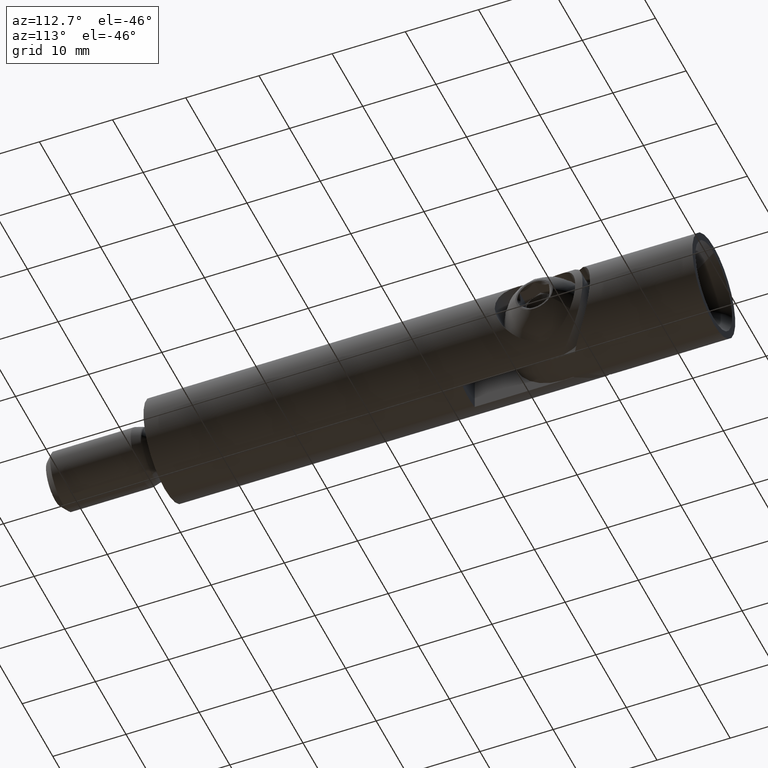
[diagram: clean part render]
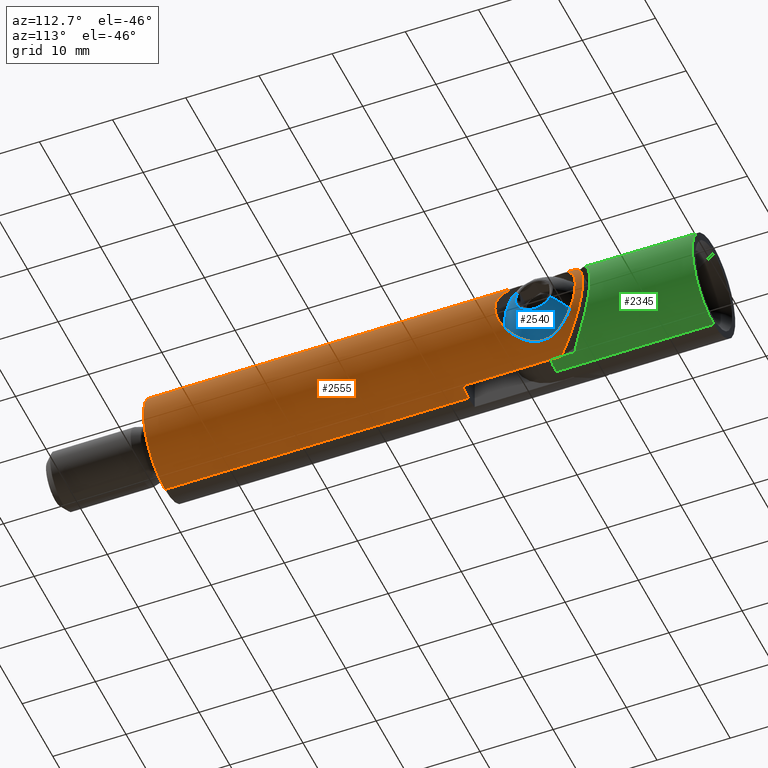
[diagram: same view with three faces highlighted in distinct colors, each labeled with its STEP entity id]
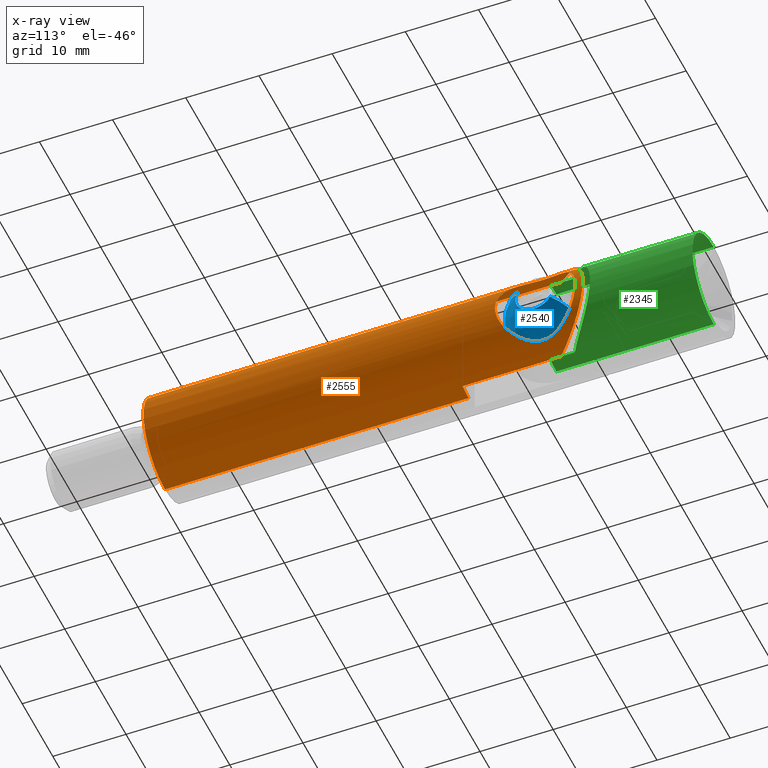
[diagram: x-ray of the same camera — body ghosted, the three highlighted faces saturated]
A machine part, auxiliary view with three faces highlighted in distinct colors.
The next image is the same camera in x-ray (body ghosted, the three faces saturated) — at least one of them is partly hidden behind the body in this view.
Their STEP definitions:

[orange] entity #2555 — the highlighted cylindrical surface (partial cylindrical patch) has radius 7 mm, axis along (0, -1, 0).
#9 = CARTESIAN_POINT ( 'NONE',  ( 4.978697894018925000, 51.02584834987406700, 4.924650651580440000 ) ) ;
#17 = CARTESIAN_POINT ( 'NONE',  ( 6.850351886073434000, 48.19155186534380400, -1.487261485796812500 ) ) ;
#32 = CARTESIAN_POINT ( 'NONE',  ( 4.519484047027382300, 52.19372721919620500, -5.345817098434363100 ) ) ;
#46 = EDGE_CURVE ( 'NONE', #1810, #1961, #474, .T. ) ;
#64 = ORIENTED_EDGE ( 'NONE', *, *, #1588, .F. ) ;
#96 = EDGE_CURVE ( 'NONE', #746, #1180, #1838, .T. ) ;
#139 = VERTEX_POINT ( 'NONE', #2750 ) ;
#198 = CARTESIAN_POINT ( 'NONE',  ( 6.752896078488856100, 58.68197807513649200, -1.852392134489937000 ) ) ;
#208 = CARTESIAN_POINT ( 'NONE',  ( 5.964810482598365700, 57.60637140969045300, 3.675012091154408200 ) ) ;
#225 = CARTESIAN_POINT ( 'NONE',  ( 4.690822759035758500, 51.67303206798796100, 5.199596003857631200 ) ) ;
#234 = CARTESIAN_POINT ( 'NONE',  ( 4.381711536334039500, 52.74240409699326900, 5.460287828193204800 ) ) ;
#237 = DIRECTION ( 'NONE',  ( 0.0000000000000000000, 0.0000000000000000000, -1.000000000000000000 ) ) ;
#272 = B_SPLINE_CURVE_WITH_KNOTS ( 'NONE', 3,
 ( #2605, #1303, #234, #1724, #225, #9, #2379, #1317, #1746, #640, #2172, #2200, #1551, #1528, #1984, #2597, #1758, #445, #2191, #864, #1089, #2614, #17, #1563, #1121, #1999, #697, #2020, #675, #919, #483, #2426, #2231, #2432, #1556, #32, #1353, #910, #2634, #470, #1790 ),
 .UNSPECIFIED., .F., .F.,
 ( 4, 2, 2, 2, 2, 2, 2, 2, 2, 1, 2, 2, 2, 2, 2, 2, 2, 2, 2, 2, 4 ),
 ( 0.01818439866543489200, 0.01932040318023530200, 0.02045640769503571600, 0.02159241220983612600, 0.02272841672463654000, 0.02386442123943695000, 0.02500042575423736300, 0.02613643026903777300, 0.02670443252643798000, 0.02727243478383818700, 0.02784043704123839000, 0.02840843929863860100, 0.02954444381343900700, 0.03068044832823941700, 0.03181645284303982700, 0.03295245735784023400, 0.03408846187264064100, 0.03465646413004084400, 0.03522446638744104700, 0.03579246864484125800, 0.03636047090224145400 ),
 .UNSPECIFIED. ) ;
#293 = ORIENTED_EDGE ( 'NONE', *, *, #1883, .F. ) ;
#314 = ORIENTED_EDGE ( 'NONE', *, *, #351, .F. ) ;
#351 = EDGE_CURVE ( 'NONE', #1736, #2771, #966, .T. ) ;
#354 = B_SPLINE_CURVE_WITH_KNOTS ( 'NONE', 3,
 ( #2122, #1694, #598, #629, #1915, #610, #822, #384, #2350, #398, #1705, #1042, #815, #2572, #1494, #2341, #198, #1026, #1240, #2159, #2366, #1506, #1035, #1464, #1712, #1892, #1924, #624, #2151, #830, #407, #2359, #208, #2556, #1265, #368, #1687, #1057, #2583, #804, #2375, #868, #1965, #427, #1937, #1299 ),
 .UNSPECIFIED., .F., .F.,
 ( 4, 2, 2, 2, 2, 2, 2, 2, 2, 2, 2, 2, 2, 2, 2, 2, 2, 2, 2, 2, 2, 2, 4 ),
 ( 0.0000000000000000000, 0.001136524916589693300, 0.001704787374884540000, 0.002273049833179386700, 0.003409574749769080000, 0.004546099666358773300, 0.005682624582948466200, 0.006819149499538160000, 0.007387411957833003900, 0.007955674416127846800, 0.009092199332717529300, 0.009660461791012370600, 0.01022872424930721200, 0.01136524916589688900, 0.01193351162419172900, 0.01250177408248656600, 0.01363829899907623200, 0.01477482391566589700, 0.01591134883225556200, 0.01647961129055039400, 0.01704787374884522700, 0.01761613620714006000, 0.01818439866543489200 ),
 .UNSPECIFIED. ) ;
#360 = CARTESIAN_POINT ( 'NONE',  ( 2.000000000000003600, 55.00000000000000700, -6.708203932499374700 ) ) ;
#368 = CARTESIAN_POINT ( 'NONE',  ( 5.142769192629570400, 56.28424948931281300, 4.755596340490511100 ) ) ;
#384 = CARTESIAN_POINT ( 'NONE',  ( 4.978728017547211900, 55.97410341681687400, -4.924598627689404900 ) ) ;
#398 = CARTESIAN_POINT ( 'NONE',  ( 5.469042501406029500, 56.84874947087538300, -4.376388289812887000 ) ) ;
#405 = CARTESIAN_POINT ( 'NONE',  ( 10.18181818181818000, 63.18181818181815100, -4.268857047954137200 ) ) ;
#407 = CARTESIAN_POINT ( 'NONE',  ( 6.339715494630916700, 58.13106079966762300, 2.972228465262285900 ) ) ;
#416 = FACE_OUTER_BOUND ( 'NONE', #1169, .T. ) ;
#427 = CARTESIAN_POINT ( 'NONE',  ( 4.343124385056433400, 53.88373190121764400, 5.489831873693366200 ) ) ;
#445 = CARTESIAN_POINT ( 'NONE',  ( 6.991820335387573400, 48.01040025683343500, 0.3879691436902634700 ) ) ;
#470 = CARTESIAN_POINT ( 'NONE',  ( 4.330127018922200800, 53.30757085261023300, -5.500000000000002700 ) ) ;
#474 = LINE ( 'NONE', #1167, #2505 ) ;
#480 =( BOUNDED_CURVE ( )  B_SPLINE_CURVE ( 3, ( #1014, #1703, #405, #2534 ),
 .UNSPECIFIED., .F., .T. ) 
 B_SPLINE_CURVE_WITH_KNOTS ( ( 4, 4 ),
 ( 1.860548028230945400, 4.422637278948641000 ),
 .UNSPECIFIED. ) 
 CURVE ( )  GEOMETRIC_REPRESENTATION_ITEM ( )  RATIONAL_B_SPLINE_CURVE ( ( 1.000000000000000000, 0.5238095238095246100, 0.5238095238095246100, 1.000000000000000000 ) ) 
 REPRESENTATION_ITEM ( '' )  );
#483 = CARTESIAN_POINT ( 'NONE',  ( 5.142119631477077800, 50.71686793326573900, -4.756356380513757600 ) ) ;
#534 = CARTESIAN_POINT ( 'NONE',  ( 0.0000000000000000000, 41.50000000000000700, -7.000000000000000000 ) ) ;
#569 = AXIS2_PLACEMENT_3D ( 'NONE', #1553, #2630, #237 ) ;
#572 = EDGE_CURVE ( 'NONE', #746, #1810, #925, .T. ) ;
#574 = LINE ( 'NONE', #1335, #601 ) ;
#578 = EDGE_CURVE ( 'NONE', #2771, #139, #574, .T. ) ;
#598 = CARTESIAN_POINT ( 'NONE',  ( 4.381899820940815500, 54.25820959508826700, -5.460128169591879300 ) ) ;
#601 = VECTOR ( 'NONE', #1095, 1000.000000000000000 ) ;
#610 = CARTESIAN_POINT ( 'NONE',  ( 4.696027008214876700, 55.32436285859414200, -5.191722378772408500 ) ) ;
#619 = AXIS2_PLACEMENT_3D ( 'NONE', #1427, #2095, #764 ) ;
#624 = CARTESIAN_POINT ( 'NONE',  ( 6.598055118728650500, 58.47860885108372700, 2.344532291128739400 ) ) ;
#629 = CARTESIAN_POINT ( 'NONE',  ( 4.518641674499008300, 54.80348821239391600, -5.346530541833999500 ) ) ;
#640 = CARTESIAN_POINT ( 'NONE',  ( 5.959888016800598500, 49.40076994837420400, 3.682938467230364200 ) ) ;
#665 = ORIENTED_EDGE ( 'NONE', *, *, #96, .T. ) ;
#675 = CARTESIAN_POINT ( 'NONE',  ( 5.640182641989929900, 49.88131979311754800, -4.156051103490171700 ) ) ;
#697 = CARTESIAN_POINT ( 'NONE',  ( 6.124201327122399600, 49.16700978500745800, -3.405732803645705500 ) ) ;
#706 = VERTEX_POINT ( 'NONE', #989 ) ;
#725 = CIRCLE ( 'NONE', #2244, 7.000000000000009800 ) ;
#739 = CARTESIAN_POINT ( 'NONE',  ( 2.000000000000006700, 41.50000000000000700, -6.708203932499378300 ) ) ;
#746 = VERTEX_POINT ( 'NONE', #2073 ) ;
#764 = DIRECTION ( 'NONE',  ( 4.440892098500626200E-015, 0.0000000000000000000, -1.000000000000000000 ) ) ;
#773 = VECTOR ( 'NONE', #1024, 1000.000000000000000 ) ;
#804 = CARTESIAN_POINT ( 'NONE',  ( 4.574617726922028300, 54.98421044356375400, 5.299017119938605800 ) ) ;
#815 = CARTESIAN_POINT ( 'NONE',  ( 6.118761982340821200, 57.82530646751459400, -3.415390690307229500 ) ) ;
#822 = CARTESIAN_POINT ( 'NONE',  ( 4.763418735986269900, 55.49023159844372100, -5.130272217416192300 ) ) ;
#830 = CARTESIAN_POINT ( 'NONE',  ( 6.408306307048528400, 58.22437945285695100, 2.821759182149325100 ) ) ;
#864 = CARTESIAN_POINT ( 'NONE',  ( 6.992886995373565300, 48.00904285874850100, -0.3678985816999201800 ) ) ;
#868 = CARTESIAN_POINT ( 'NONE',  ( 4.428083658012213600, 54.44272206825869600, 5.421769410065435200 ) ) ;
#910 = CARTESIAN_POINT ( 'NONE',  ( 4.392494118280227500, 52.73931084414697100, -5.450411786515232400 ) ) ;
#917 = EDGE_CURVE ( 'NONE', #1961, #2424, #480, .T. ) ;
#919 = CARTESIAN_POINT ( 'NONE',  ( 5.472837526310867100, 50.14494703680269100, -4.371769634081768000 ) ) ;
#925 = CIRCLE ( 'NONE', #926, 7.000000000000009800 ) ;
#926 = AXIS2_PLACEMENT_3D ( 'NONE', #1786, #1991, #2006 ) ;
#940 = ORIENTED_EDGE ( 'NONE', *, *, #917, .F. ) ;
#966 = CIRCLE ( 'NONE', #619, 7.000000000000009800 ) ;
#989 = CARTESIAN_POINT ( 'NONE',  ( 4.330127018922306400, 53.49999999999989300, 5.500000000000002700 ) ) ;
#1004 = VERTEX_POINT ( 'NONE', #1080 ) ;
#1014 = CARTESIAN_POINT ( 'NONE',  ( 2.000000000000003600, 55.00000000000000700, 6.708203932499374700 ) ) ;
#1024 = DIRECTION ( 'NONE',  ( 0.0000000000000000000, -1.000000000000000000, 0.0000000000000000000 ) ) ;
#1026 = CARTESIAN_POINT ( 'NONE',  ( 6.839840961106306200, 58.79478193106692200, -1.499845889937602800 ) ) ;
#1035 = CARTESIAN_POINT ( 'NONE',  ( 6.992752333776258500, 58.99078562300533000, 0.3701017048744575400 ) ) ;
#1042 = CARTESIAN_POINT ( 'NONE',  ( 5.959526870003808900, 57.59866929481923100, -3.683428487766158700 ) ) ;
#1051 = DIRECTION ( 'NONE',  ( 0.0000000000000000000, -1.000000000000000000, 0.0000000000000000000 ) ) ;
#1057 = CARTESIAN_POINT ( 'NONE',  ( 4.764965220792315200, 55.49393046297966900, 5.128839916542249400 ) ) ;
#1064 = VECTOR ( 'NONE', #1051, 1000.000000000000000 ) ;
#1074 = CARTESIAN_POINT ( 'NONE',  ( 2.000000000000006700, 41.50000000000000700, 6.708203932499378300 ) ) ;
#1080 = CARTESIAN_POINT ( 'NONE',  ( 4.330127018922200800, 53.50000000000000700, -5.500000000000003600 ) ) ;
#1089 = CARTESIAN_POINT ( 'NONE',  ( 6.962792258086790500, 48.04742099311989300, -0.7452126322119025900 ) ) ;
#1095 = DIRECTION ( 'NONE',  ( 0.0000000000000000000, -1.000000000000000000, 0.0000000000000000000 ) ) ;
#1121 = CARTESIAN_POINT ( 'NONE',  ( 6.542824856651345800, 48.59413685171207900, -2.513412350006164700 ) ) ;
#1147 = ORIENTED_EDGE ( 'NONE', *, *, #1418, .F. ) ;
#1167 = CARTESIAN_POINT ( 'NONE',  ( 2.000000000000017800, 0.0000000000000000000, 6.708203932499374700 ) ) ;
#1169 = EDGE_LOOP ( 'NONE', ( #1840, #665, #293, #1784, #314, #1147, #940, #2416 ) ) ;
#1180 = VERTEX_POINT ( 'NONE', #1347 ) ;
#1190 = CARTESIAN_POINT ( 'NONE',  ( 8.572527594031484000E-016, 0.0000000000000000000, 7.000000000000009800 ) ) ;
#1240 = CARTESIAN_POINT ( 'NONE',  ( 6.876854958624238500, 58.84244529080079600, -1.320316435885759300 ) ) ;
#1241 = CARTESIAN_POINT ( 'NONE',  ( 0.0000000000000000000, 0.0000000000000000000, 0.0000000000000000000 ) ) ;
#1265 = CARTESIAN_POINT ( 'NONE',  ( 5.472077794092319500, 56.85374501634771600, 4.372657788776559900 ) ) ;
#1299 = CARTESIAN_POINT ( 'NONE',  ( 4.330127018922306400, 53.49999999999989300, 5.500000000000002700 ) ) ;
#1303 = CARTESIAN_POINT ( 'NONE',  ( 4.330127018922207900, 53.11766085434285100, 5.499999999999989300 ) ) ;
#1317 = CARTESIAN_POINT ( 'NONE',  ( 5.467921536950592900, 50.15312685131380000, 4.377740927995244400 ) ) ;
#1335 = CARTESIAN_POINT ( 'NONE',  ( 0.0000000000000000000, 0.0000000000000000000, -7.000000000000009800 ) ) ;
#1347 = CARTESIAN_POINT ( 'NONE',  ( 8.572527594031474200E-016, 0.0000000000000000000, 7.000000000000000900 ) ) ;
#1353 = CARTESIAN_POINT ( 'NONE',  ( 4.428529916354916600, 52.55528324531405100, -5.421403810932895700 ) ) ;
#1411 = CARTESIAN_POINT ( 'NONE',  ( 2.000000000000017800, 0.0000000000000000000, -6.708203932499374700 ) ) ;
#1418 = EDGE_CURVE ( 'NONE', #2424, #1736, #2303, .T. ) ;
#1427 = CARTESIAN_POINT ( 'NONE',  ( 0.0000000000000000000, 41.50000000000000700, 0.0000000000000000000 ) ) ;
#1464 = CARTESIAN_POINT ( 'NONE',  ( 6.962684004290616200, 58.95244074703001800, 0.7460508896046640400 ) ) ;
#1466 = DIRECTION ( 'NONE',  ( 0.0000000000000000000, 0.0000000000000000000, -1.000000000000000000 ) ) ;
#1494 = CARTESIAN_POINT ( 'NONE',  ( 6.536999315311254200, 58.39809581122223400, -2.528186749634239000 ) ) ;
#1506 = CARTESIAN_POINT ( 'NONE',  ( 7.000211044381924100, 59.00026860204966500, 0.1814224726587916300 ) ) ;
#1528 = CARTESIAN_POINT ( 'NONE',  ( 6.758679285805233600, 48.30973647135602500, 1.856318990163557500 ) ) ;
#1551 = CARTESIAN_POINT ( 'NONE',  ( 6.536566839910172200, 48.60247043285981800, 2.529616537936404600 ) ) ;
#1553 = CARTESIAN_POINT ( 'NONE',  ( 0.0000000000000000000, 0.0000000000000000000, 0.0000000000000000000 ) ) ;
#1556 = CARTESIAN_POINT ( 'NONE',  ( 4.574836818815190200, 52.01506289652024900, -5.298832792529528200 ) ) ;
#1563 = CARTESIAN_POINT ( 'NONE',  ( 6.763366467986198700, 48.30364915491699000, -1.839204383883985500 ) ) ;
#1588 = EDGE_CURVE ( 'NONE', #706, #1004, #272, .T. ) ;
#1687 = CARTESIAN_POINT ( 'NONE',  ( 4.980657885628821700, 55.97798577821354400, 4.922663588529413700 ) ) ;
#1694 = CARTESIAN_POINT ( 'NONE',  ( 4.330127018922203400, 53.88503459772784500, -5.500000000000004400 ) ) ;
#1703 = CARTESIAN_POINT ( 'NONE',  ( 10.18181818181818000, 63.18181818181815100, 4.268857047954137200 ) ) ;
#1705 = CARTESIAN_POINT ( 'NONE',  ( 5.635442459809199000, 57.11127971664020500, -4.162378433175480700 ) ) ;
#1712 = CARTESIAN_POINT ( 'NONE',  ( 6.939886827421137400, 58.92333939778237800, 0.9344020694859667100 ) ) ;
#1724 = CARTESIAN_POINT ( 'NONE',  ( 4.564636563695207100, 52.01323757000891800, 5.308317265926603100 ) ) ;
#1736 = VERTEX_POINT ( 'NONE', #739 ) ;
#1746 = CARTESIAN_POINT ( 'NONE',  ( 5.634418784869820000, 49.89027745018502500, 4.163847485549225300 ) ) ;
#1758 = CARTESIAN_POINT ( 'NONE',  ( 6.960496336383268800, 48.05035203094364200, 0.7665261965452077100 ) ) ;
#1782 = FACE_BOUND ( 'NONE', #2112, .T. ) ;
#1784 = ORIENTED_EDGE ( 'NONE', *, *, #578, .F. ) ;
#1786 = CARTESIAN_POINT ( 'NONE',  ( 0.0000000000000000000, 41.50000000000000700, 0.0000000000000000000 ) ) ;
#1790 = CARTESIAN_POINT ( 'NONE',  ( 4.330127018922200800, 53.50000000000000700, -5.500000000000003600 ) ) ;
#1810 = VERTEX_POINT ( 'NONE', #1074 ) ;
#1838 = LINE ( 'NONE', #1190, #773 ) ;
#1840 = ORIENTED_EDGE ( 'NONE', *, *, #572, .F. ) ;
#1883 = EDGE_CURVE ( 'NONE', #139, #1180, #725, .T. ) ;
#1892 = CARTESIAN_POINT ( 'NONE',  ( 6.849957484525695900, 58.80794138290069400, 1.489505985111247300 ) ) ;
#1915 = CARTESIAN_POINT ( 'NONE',  ( 4.573796947574694000, 54.98163716731789200, -5.299720030575785200 ) ) ;
#1924 = CARTESIAN_POINT ( 'NONE',  ( 6.762739449558576000, 58.69552729103085700, 1.841197217326558300 ) ) ;
#1937 = CARTESIAN_POINT ( 'NONE',  ( 4.330127018922192800, 53.69125714729354100, 5.500000000000003600 ) ) ;
#1942 = CARTESIAN_POINT ( 'NONE',  ( 2.000000000000003600, 55.00000000000000700, 6.708203932499374700 ) ) ;
#1961 = VERTEX_POINT ( 'NONE', #1942 ) ;
#1965 = CARTESIAN_POINT ( 'NONE',  ( 4.392137359826588000, 54.25854553951938900, 5.450698380749660300 ) ) ;
#1984 = CARTESIAN_POINT ( 'NONE',  ( 6.846321943609231300, 48.19674714074445600, 1.505326204670955700 ) ) ;
#1991 = DIRECTION ( 'NONE',  ( -0.0000000000000000000, 1.000000000000000000, -0.0000000000000000000 ) ) ;
#1999 = CARTESIAN_POINT ( 'NONE',  ( 6.412469452071439600, 48.76832727443636600, -2.825790747951237400 ) ) ;
#2006 = DIRECTION ( 'NONE',  ( 0.0000000000000000000, 0.0000000000000000000, -1.000000000000000000 ) ) ;
#2020 = CARTESIAN_POINT ( 'NONE',  ( 5.965203083675142200, 49.39307486869241600, -3.674339829185503600 ) ) ;
#2073 = CARTESIAN_POINT ( 'NONE',  ( 8.572527594031473200E-016, 41.50000000000000700, 7.000000000000000000 ) ) ;
#2095 = DIRECTION ( 'NONE',  ( -0.0000000000000000000, 1.000000000000000000, -0.0000000000000000000 ) ) ;
#2112 = EDGE_LOOP ( 'NONE', ( #2793, #64 ) ) ;
#2122 = CARTESIAN_POINT ( 'NONE',  ( 4.330127018922200800, 53.50000000000000700, -5.500000000000003600 ) ) ;
#2151 = CARTESIAN_POINT ( 'NONE',  ( 6.537336558496928500, 58.39797312861958300, 2.508375037338215200 ) ) ;
#2159 = CARTESIAN_POINT ( 'NONE',  ( 6.967224025703914400, 58.95843941775716200, -0.7715360179236563400 ) ) ;
#2172 = CARTESIAN_POINT ( 'NONE',  ( 6.118800279731659400, 49.17465190330180700, 3.415223899190798400 ) ) ;
#2191 = CARTESIAN_POINT ( 'NONE',  ( 7.007632237361908900, 47.99029646918290100, 0.009726663966024356000 ) ) ;
#2200 = CARTESIAN_POINT ( 'NONE',  ( 6.406229643317486100, 48.77679160556237300, 2.839664223447652300 ) ) ;
#2228 = CYLINDRICAL_SURFACE ( 'NONE', #569, 7.000000000000009800 ) ;
#2231 = CARTESIAN_POINT ( 'NONE',  ( 4.765770817492358100, 51.50415590306033700, -5.128091243567285000 ) ) ;
#2244 = AXIS2_PLACEMENT_3D ( 'NONE', #1241, #2762, #1466 ) ;
#2303 = LINE ( 'NONE', #1411, #1064 ) ;
#2341 = CARTESIAN_POINT ( 'NONE',  ( 6.702587673185211000, 58.61633923314488500, -2.026410756884485600 ) ) ;
#2350 = CARTESIAN_POINT ( 'NONE',  ( 5.141011918187209600, 56.28095319619831100, -4.757435948329097100 ) ) ;
#2359 = CARTESIAN_POINT ( 'NONE',  ( 6.123759610155002700, 57.83236171993802100, 3.406480096426387000 ) ) ;
#2366 = CARTESIAN_POINT ( 'NONE',  ( 6.999564306604387600, 58.99944548091133400, -0.3867488016776263200 ) ) ;
#2375 = CARTESIAN_POINT ( 'NONE',  ( 4.519197805659930900, 54.80535390691900200, 5.346060195283494700 ) ) ;
#2379 = CARTESIAN_POINT ( 'NONE',  ( 5.140929530618920200, 50.71925362934014500, 4.757480964554997800 ) ) ;
#2416 = ORIENTED_EDGE ( 'NONE', *, *, #46, .F. ) ;
#2424 = VERTEX_POINT ( 'NONE', #360 ) ;
#2426 = CARTESIAN_POINT ( 'NONE',  ( 4.981418642730964100, 51.02052013683179200, -4.921893279491674100 ) ) ;
#2432 = CARTESIAN_POINT ( 'NONE',  ( 4.698041462989345400, 51.67038258904469900, -5.189910143153371200 ) ) ;
#2460 = EDGE_CURVE ( 'NONE', #1004, #706, #354, .T. ) ;
#2505 = VECTOR ( 'NONE', #2694, 1000.000000000000000 ) ;
#2534 = CARTESIAN_POINT ( 'NONE',  ( 2.000000000000003600, 55.00000000000000700, -6.708203932499374700 ) ) ;
#2555 = ADVANCED_FACE ( 'NONE', ( #1782, #416 ), #2228, .T. ) ;
#2556 = CARTESIAN_POINT ( 'NONE',  ( 5.639211792954384400, 57.11718560579953400, 4.157399225194836800 ) ) ;
#2572 = CARTESIAN_POINT ( 'NONE',  ( 6.407049158269247300, 58.22433135563783700, -2.837932847601924100 ) ) ;
#2583 = CARTESIAN_POINT ( 'NONE',  ( 4.697365174980630400, 55.32783830806646800, 5.190517334307911800 ) ) ;
#2597 = CARTESIAN_POINT ( 'NONE',  ( 6.937002934152253000, 48.08035043643493400, 0.9552607372160961700 ) ) ;
#2605 = CARTESIAN_POINT ( 'NONE',  ( 4.330127018922306400, 53.49999999999989300, 5.500000000000002700 ) ) ;
#2614 = CARTESIAN_POINT ( 'NONE',  ( 6.939826420599049000, 48.07673844380791900, -0.9346797176019507900 ) ) ;
#2630 = DIRECTION ( 'NONE',  ( 0.0000000000000000000, -1.000000000000000000, 0.0000000000000000000 ) ) ;
#2634 = CARTESIAN_POINT ( 'NONE',  ( 4.343239327089206000, 53.11481009218789500, -5.489741830845623800 ) ) ;
#2694 = DIRECTION ( 'NONE',  ( -0.0000000000000000000, 1.000000000000000000, -0.0000000000000000000 ) ) ;
#2750 = CARTESIAN_POINT ( 'NONE',  ( 0.0000000000000000000, 0.0000000000000000000, -7.000000000000000900 ) ) ;
#2762 = DIRECTION ( 'NONE',  ( 0.0000000000000000000, -1.000000000000000000, 0.0000000000000000000 ) ) ;
#2771 = VERTEX_POINT ( 'NONE', #534 ) ;
#2793 = ORIENTED_EDGE ( 'NONE', *, *, #2460, .F. ) ;

[blue] entity #2540 — the highlighted spherical surface has radius 5.6637 mm.
#3 = CARTESIAN_POINT ( 'NONE',  ( 0.0000000000000000000, 5.058111541106021600, 0.0000000000000000000 ) ) ;
#131 = AXIS2_PLACEMENT_3D ( 'NONE', #3, #438, #2176 ) ;
#196 = CARTESIAN_POINT ( 'NONE',  ( 2.548051076758503600, 0.0000000000000000000, 0.0000000000000000000 ) ) ;
#361 = CARTESIAN_POINT ( 'NONE',  ( 0.0000000000000000000, 0.0000000000000000000, 0.0000000000000000000 ) ) ;
#430 = DIRECTION ( 'NONE',  ( 1.000000000000000000, 0.0000000000000000000, -1.224646799147353200E-016 ) ) ;
#438 = DIRECTION ( 'NONE',  ( -0.0000000000000000000, 0.0000000000000000000, 1.000000000000000000 ) ) ;
#710 = CARTESIAN_POINT ( 'NONE',  ( 0.0000000000000000000, 3.061350000000000900, 0.0000000000000000000 ) ) ;
#747 = VERTEX_POINT ( 'NONE', #1177 ) ;
#808 = VERTEX_POINT ( 'NONE', #196 ) ;
#882 = EDGE_CURVE ( 'NONE', #1388, #1362, #2240, .T. ) ;
#949 = ORIENTED_EDGE ( 'NONE', *, *, #1993, .F. ) ;
#968 = ORIENTED_EDGE ( 'NONE', *, *, #2679, .T. ) ;
#1136 = CARTESIAN_POINT ( 'NONE',  ( 0.0000000000000000000, 5.058111541106021600, 0.0000000000000000000 ) ) ;
#1142 = DIRECTION ( 'NONE',  ( 0.0000000000000000000, 0.0000000000000000000, -1.000000000000000000 ) ) ;
#1177 = CARTESIAN_POINT ( 'NONE',  ( -2.548051076758503600, 0.0000000000000000000, 4.805545315348619700E-016 ) ) ;
#1191 = SPHERICAL_SURFACE ( 'NONE', #131, 5.663661064368179500 ) ;
#1254 = CARTESIAN_POINT ( 'NONE',  ( 0.0000000000000000000, 3.061350000000000900, 0.0000000000000000000 ) ) ;
#1333 = DIRECTION ( 'NONE',  ( 0.0000000000000000000, 0.0000000000000000000, -1.000000000000000000 ) ) ;
#1362 = VERTEX_POINT ( 'NONE', #2704 ) ;
#1385 = VERTEX_POINT ( 'NONE', #1610 ) ;
#1388 = VERTEX_POINT ( 'NONE', #2355 ) ;
#1392 = CIRCLE ( 'NONE', #2703, 5.663661064368179500 ) ;
#1496 = ORIENTED_EDGE ( 'NONE', *, *, #2661, .T. ) ;
#1610 = CARTESIAN_POINT ( 'NONE',  ( 5.300000000000000700, 3.061350000000000900, 0.0000000000000000000 ) ) ;
#1706 = EDGE_LOOP ( 'NONE', ( #949, #2210, #968, #1496, #2000 ) ) ;
#1744 = CARTESIAN_POINT ( 'NONE',  ( 0.0000000000000000000, 5.058111541106021600, 0.0000000000000000000 ) ) ;
#1862 = EDGE_CURVE ( 'NONE', #747, #808, #2805, .T. ) ;
#1877 = CIRCLE ( 'NONE', #2317, 5.299999999999999800 ) ;
#1927 = AXIS2_PLACEMENT_3D ( 'NONE', #1254, #2776, #2749 ) ;
#1948 = AXIS2_PLACEMENT_3D ( 'NONE', #361, #2565, #2538 ) ;
#1993 = EDGE_CURVE ( 'NONE', #1388, #747, #2491, .T. ) ;
#2000 = ORIENTED_EDGE ( 'NONE', *, *, #1862, .F. ) ;
#2176 = DIRECTION ( 'NONE',  ( 1.000000000000000000, 0.0000000000000000000, 0.0000000000000000000 ) ) ;
#2210 = ORIENTED_EDGE ( 'NONE', *, *, #882, .T. ) ;
#2240 = CIRCLE ( 'NONE', #1927, 5.299999999999999800 ) ;
#2317 = AXIS2_PLACEMENT_3D ( 'NONE', #710, #2447, #1142 ) ;
#2355 = CARTESIAN_POINT ( 'NONE',  ( -5.300000000000000700, 3.061350000000000900, 6.490628035480972900E-016 ) ) ;
#2390 = DIRECTION ( 'NONE',  ( 1.224646799147353200E-016, 0.0000000000000000000, 1.000000000000000000 ) ) ;
#2436 = DIRECTION ( 'NONE',  ( -1.000000000000000000, 0.0000000000000000000, 0.0000000000000000000 ) ) ;
#2447 = DIRECTION ( 'NONE',  ( 0.0000000000000000000, -1.000000000000000000, 0.0000000000000000000 ) ) ;
#2491 = CIRCLE ( 'NONE', #2761, 5.663661064368179500 ) ;
#2538 = DIRECTION ( 'NONE',  ( 0.0000000000000000000, 0.0000000000000000000, -1.000000000000000000 ) ) ;
#2540 = ADVANCED_FACE ( 'NONE', ( #2722 ), #1191, .T. ) ;
#2565 = DIRECTION ( 'NONE',  ( 0.0000000000000000000, -1.000000000000000000, 0.0000000000000000000 ) ) ;
#2661 = EDGE_CURVE ( 'NONE', #1385, #808, #1392, .T. ) ;
#2679 = EDGE_CURVE ( 'NONE', #1362, #1385, #1877, .T. ) ;
#2703 = AXIS2_PLACEMENT_3D ( 'NONE', #1136, #1333, #2436 ) ;
#2704 = CARTESIAN_POINT ( 'NONE',  ( 0.0000000000000000000, 3.061350000000000900, -5.299999999999999800 ) ) ;
#2722 = FACE_OUTER_BOUND ( 'NONE', #1706, .T. ) ;
#2749 = DIRECTION ( 'NONE',  ( 0.0000000000000000000, 0.0000000000000000000, -1.000000000000000000 ) ) ;
#2761 = AXIS2_PLACEMENT_3D ( 'NONE', #1744, #2390, #430 ) ;
#2776 = DIRECTION ( 'NONE',  ( 0.0000000000000000000, -1.000000000000000000, 0.0000000000000000000 ) ) ;
#2805 = CIRCLE ( 'NONE', #1948, 2.548051076758503600 ) ;

[green] entity #2345 — the highlighted cylindrical surface (partial cylindrical patch) has radius 7 mm, axis along (0, -1, 0).
#63 = CARTESIAN_POINT ( 'NONE',  ( 3.264383611198423000, 11.22625050473428500, 6.201951216264656200 ) ) ;
#78 = CARTESIAN_POINT ( 'NONE',  ( 2.305848758249878600, 10.53325279972685500, 6.619693586649744600 ) ) ;
#107 = CARTESIAN_POINT ( 'NONE',  ( 2.306107063237206500, 10.53340430827661200, -6.619618664505850300 ) ) ;
#117 = CARTESIAN_POINT ( 'NONE',  ( 6.700882615440144200, 14.22142852395074000, 2.063528938807302400 ) ) ;
#125 = CIRCLE ( 'NONE', #1894, 7.000000000000012400 ) ;
#154 = VERTEX_POINT ( 'NONE', #2329 ) ;
#223 = ORIENTED_EDGE ( 'NONE', *, *, #2695, .T. ) ;
#266 = CARTESIAN_POINT ( 'NONE',  ( 3.563903459038168200, 11.46364793496352500, 6.034707712280944500 ) ) ;
#295 = VECTOR ( 'NONE', #2624, 1000.000000000000000 ) ;
#300 = CARTESIAN_POINT ( 'NONE',  ( 6.990755331370471600, 14.49136931391670300, -0.4166032171452508400 ) ) ;
#316 = DIRECTION ( 'NONE',  ( 0.0000000000000000000, 0.0000000000000000000, -1.000000000000000000 ) ) ;
#319 = CARTESIAN_POINT ( 'NONE',  ( 2.635452037258108100, 10.76172532256926000, -6.494219451929867900 ) ) ;
#391 = DIRECTION ( 'NONE',  ( 0.0000000000000000000, -1.000000000000000000, 0.0000000000000000000 ) ) ;
#440 = ORIENTED_EDGE ( 'NONE', *, *, #1813, .T. ) ;
#516 = CARTESIAN_POINT ( 'NONE',  ( 1.950000000000002800, 10.32453004197585100, -6.722908596731042700 ) ) ;
#522 = FACE_OUTER_BOUND ( 'NONE', #546, .T. ) ;
#546 = EDGE_LOOP ( 'NONE', ( #655, #1120, #440, #1372, #223, #2263, #2586, #1630 ) ) ;
#594 = CARTESIAN_POINT ( 'NONE',  ( 0.0000000000000000000, 7.000000000000006200, -7.000000000000000000 ) ) ;
#609 = VERTEX_POINT ( 'NONE', #1536 ) ;
#631 = EDGE_CURVE ( 'NONE', #154, #1812, #1140, .T. ) ;
#655 = ORIENTED_EDGE ( 'NONE', *, *, #2131, .F. ) ;
#690 = CARTESIAN_POINT ( 'NONE',  ( 5.868225340663285800, 13.45599853377070700, 3.835769034005793700 ) ) ;
#723 = CARTESIAN_POINT ( 'NONE',  ( 8.572527594031486000E-016, 28.49999999999999600, 7.000000000000012400 ) ) ;
#727 = CARTESIAN_POINT ( 'NONE',  ( 6.953142436852674600, 14.45628217287742200, -0.8354810569120725300 ) ) ;
#923 = VERTEX_POINT ( 'NONE', #1305 ) ;
#931 = CARTESIAN_POINT ( 'NONE',  ( 6.925090090326429900, 14.43012059524227000, -1.042178846754717900 ) ) ;
#938 = DIRECTION ( 'NONE',  ( 0.0000000000000000000, -1.000000000000000000, 0.0000000000000000000 ) ) ;
#948 = CARTESIAN_POINT ( 'NONE',  ( 0.0000000000000000000, 28.49999999999999600, 0.0000000000000000000 ) ) ;
#952 = CARTESIAN_POINT ( 'NONE',  ( 6.814322769489309400, 14.32695516634329100, -1.654401167873210900 ) ) ;
#961 = CARTESIAN_POINT ( 'NONE',  ( 4.418712226561547500, 12.17277963081462200, -5.440729217088446900 ) ) ;
#1008 = VERTEX_POINT ( 'NONE', #1043 ) ;
#1043 = CARTESIAN_POINT ( 'NONE',  ( 1.950000000000002800, 7.000000000000006200, -6.722908596731044500 ) ) ;
#1061 = VECTOR ( 'NONE', #2034, 1000.000000000000000 ) ;
#1091 = CARTESIAN_POINT ( 'NONE',  ( 0.0000000000000000000, 7.000000000000006200, 0.0000000000000000000 ) ) ;
#1114 = CARTESIAN_POINT ( 'NONE',  ( 2.635033722047114900, 10.76143532232463700, 6.494381920834501700 ) ) ;
#1120 = ORIENTED_EDGE ( 'NONE', *, *, #1755, .T. ) ;
#1140 = LINE ( 'NONE', #1326, #295 ) ;
#1161 = CARTESIAN_POINT ( 'NONE',  ( 6.812558786842101800, 14.32531414006004600, 1.661499252859990300 ) ) ;
#1255 = LINE ( 'NONE', #1472, #2157 ) ;
#1273 = CARTESIAN_POINT ( 'NONE',  ( 1.950000000000002800, 7.000000000000006200, 6.722908596731044500 ) ) ;
#1289 = VERTEX_POINT ( 'NONE', #1394 ) ;
#1305 = CARTESIAN_POINT ( 'NONE',  ( 1.950000000000002800, 10.32453004197585100, -6.722908596731042700 ) ) ;
#1326 = CARTESIAN_POINT ( 'NONE',  ( 1.950000000000002800, 28.49999999999999600, 6.722908596731044500 ) ) ;
#1342 = CARTESIAN_POINT ( 'NONE',  ( 6.254624015500178700, 13.80912402549097500, 3.166839300591186100 ) ) ;
#1360 = CARTESIAN_POINT ( 'NONE',  ( 1.950000000000002800, 10.32453004197585100, 6.722908596731042700 ) ) ;
#1372 = ORIENTED_EDGE ( 'NONE', *, *, #631, .F. ) ;
#1374 = CARTESIAN_POINT ( 'NONE',  ( 3.564602812422098300, 11.46420672566132000, -6.034297455266274000 ) ) ;
#1386 = CARTESIAN_POINT ( 'NONE',  ( 6.422220379667328900, 13.96362812804042800, 2.813372513939231400 ) ) ;
#1394 = CARTESIAN_POINT ( 'NONE',  ( 8.572527594031471200E-016, 28.49999999999999600, 7.000000000000000000 ) ) ;
#1396 = CARTESIAN_POINT ( 'NONE',  ( 6.960953539074267800, 14.46352089831164800, 0.8465594003277516800 ) ) ;
#1414 = VERTEX_POINT ( 'NONE', #2146 ) ;
#1439 = EDGE_CURVE ( 'NONE', #1008, #1839, #125, .T. ) ;
#1472 = CARTESIAN_POINT ( 'NONE',  ( 0.0000000000000000000, 28.49999999999999600, -7.000000000000012400 ) ) ;
#1536 = CARTESIAN_POINT ( 'NONE',  ( 8.572527594031471200E-016, 7.000000000000006200, 7.000000000000000000 ) ) ;
#1572 = DIRECTION ( 'NONE',  ( 0.0000000000000000000, 1.000000000000000000, 0.0000000000000000000 ) ) ;
#1586 = CARTESIAN_POINT ( 'NONE',  ( 4.946381072541939300, 12.63021811940327900, 4.965834704692676700 ) ) ;
#1612 = CARTESIAN_POINT ( 'NONE',  ( 5.656038050651917000, 13.26340737878419400, -4.140319695485017000 ) ) ;
#1621 = CARTESIAN_POINT ( 'NONE',  ( 4.947520440491219400, 12.63121566598941000, -4.964735002572239400 ) ) ;
#1630 = ORIENTED_EDGE ( 'NONE', *, *, #2494, .F. ) ;
#1631 = CARTESIAN_POINT ( 'NONE',  ( 6.999470610290154900, 14.49950590298611400, 0.4316102636623351300 ) ) ;
#1659 = AXIS2_PLACEMENT_3D ( 'NONE', #1091, #2428, #2113 ) ;
#1696 = AXIS2_PLACEMENT_3D ( 'NONE', #2440, #1572, #1773 ) ;
#1742 = EDGE_CURVE ( 'NONE', #1008, #923, #2168, .T. ) ;
#1755 = EDGE_CURVE ( 'NONE', #1289, #609, #2300, .T. ) ;
#1773 = DIRECTION ( 'NONE',  ( 0.0000000000000000000, 0.0000000000000000000, 1.000000000000000000 ) ) ;
#1783 = CARTESIAN_POINT ( 'NONE',  ( 4.418235238543768000, 12.17237595118198500, 5.441084212362589800 ) ) ;
#1811 = CARTESIAN_POINT ( 'NONE',  ( 5.193821729379060100, 12.84938386149928400, 4.707127422488038200 ) ) ;
#1812 = VERTEX_POINT ( 'NONE', #1273 ) ;
#1813 = EDGE_CURVE ( 'NONE', #609, #1812, #2021, .T. ) ;
#1839 = VERTEX_POINT ( 'NONE', #594 ) ;
#1848 = CARTESIAN_POINT ( 'NONE',  ( 7.000256635555436100, 14.50023952649446600, -0.2027957035193858300 ) ) ;
#1894 = AXIS2_PLACEMENT_3D ( 'NONE', #2801, #2560, #2507 ) ;
#1952 = VECTOR ( 'NONE', #938, 1000.000000000000000 ) ;
#1990 = CIRCLE ( 'NONE', #1696, 7.000000000000012400 ) ;
#1997 = CARTESIAN_POINT ( 'NONE',  ( 5.654576034015631700, 13.26208731391236200, 4.142294364678231300 ) ) ;
#2021 = CIRCLE ( 'NONE', #1659, 7.000000000000012400 ) ;
#2034 = DIRECTION ( 'NONE',  ( -0.0000000000000000000, 1.000000000000000000, -0.0000000000000000000 ) ) ;
#2113 = DIRECTION ( 'NONE',  ( 0.0000000000000000000, 0.0000000000000000000, -1.000000000000000000 ) ) ;
#2127 = CYLINDRICAL_SURFACE ( 'NONE', #2284, 7.000000000000012400 ) ;
#2131 = EDGE_CURVE ( 'NONE', #1289, #1414, #1990, .T. ) ;
#2146 = CARTESIAN_POINT ( 'NONE',  ( 0.0000000000000000000, 28.49999999999999600, -7.000000000000000000 ) ) ;
#2157 = VECTOR ( 'NONE', #391, 1000.000000000000000 ) ;
#2168 = LINE ( 'NONE', #2476, #1061 ) ;
#2211 = CARTESIAN_POINT ( 'NONE',  ( 4.140226643039588000, 11.93601273070631100, 5.654876513441517500 ) ) ;
#2258 = CARTESIAN_POINT ( 'NONE',  ( 6.703303110206070100, 14.22367390686691700, -2.055997753330923500 ) ) ;
#2263 = ORIENTED_EDGE ( 'NONE', *, *, #1742, .F. ) ;
#2267 = CARTESIAN_POINT ( 'NONE',  ( 4.140961515818542400, 11.93662949334892100, -5.654341404042596300 ) ) ;
#2284 = AXIS2_PLACEMENT_3D ( 'NONE', #948, #2475, #316 ) ;
#2287 = CARTESIAN_POINT ( 'NONE',  ( 5.195148306165057400, 12.85056163844426200, -4.705682489096966800 ) ) ;
#2300 = LINE ( 'NONE', #723, #1952 ) ;
#2329 = CARTESIAN_POINT ( 'NONE',  ( 1.950000000000002800, 10.32453004197585100, 6.722908596731042700 ) ) ;
#2345 = ADVANCED_FACE ( 'NONE', ( #522 ), #2127, .T. ) ;
#2428 = DIRECTION ( 'NONE',  ( -0.0000000000000000000, 1.000000000000000000, -0.0000000000000000000 ) ) ;
#2440 = CARTESIAN_POINT ( 'NONE',  ( 0.0000000000000000000, 28.49999999999999600, 0.0000000000000000000 ) ) ;
#2461 = B_SPLINE_CURVE_WITH_KNOTS ( 'NONE', 3,
 ( #1360, #78, #1114, #63, #266, #2211, #1783, #1586, #1811, #1997, #690, #1342, #1386, #117, #1161, #1396, #1631, #1848, #300, #727, #931, #952, #2258, #2684, #2470, #2482, #1612, #2287, #1621, #961, #2267, #1374, #2707, #319, #107, #516 ),
 .UNSPECIFIED., .F., .F.,
 ( 4, 2, 2, 2, 2, 2, 2, 2, 2, 2, 2, 2, 2, 2, 2, 2, 2, 4 ),
 ( 6.505213034913026600E-019, 0.001251244527019294800, 0.002502489054038588800, 0.003753733581057883600, 0.005004978108077177600, 0.006256222635096471600, 0.007507467162115766400, 0.008758711689135058700, 0.01000995621615435400, 0.01063557847966400100, 0.01126120074317364800, 0.01251244527019294100, 0.01376368979721223600, 0.01501493432423153100, 0.01626617885125082600, 0.01751742337827011700, 0.01876866790528941200, 0.02001991243230870700 ),
 .UNSPECIFIED. ) ;
#2470 = CARTESIAN_POINT ( 'NONE',  ( 6.256051893255673200, 13.81043507403476400, -3.164085553930648500 ) ) ;
#2475 = DIRECTION ( 'NONE',  ( 0.0000000000000000000, -1.000000000000000000, 0.0000000000000000000 ) ) ;
#2476 = CARTESIAN_POINT ( 'NONE',  ( 1.950000000000002800, 28.49999999999999600, -6.722908596731044500 ) ) ;
#2482 = CARTESIAN_POINT ( 'NONE',  ( 5.869340193552215400, 13.45701129890466800, -3.834118983032859700 ) ) ;
#2494 = EDGE_CURVE ( 'NONE', #1414, #1839, #1255, .T. ) ;
#2507 = DIRECTION ( 'NONE',  ( 1.776356839400250300E-015, 0.0000000000000000000, -1.000000000000000000 ) ) ;
#2560 = DIRECTION ( 'NONE',  ( -0.0000000000000000000, 1.000000000000000000, -0.0000000000000000000 ) ) ;
#2586 = ORIENTED_EDGE ( 'NONE', *, *, #1439, .T. ) ;
#2624 = DIRECTION ( 'NONE',  ( 0.0000000000000000000, -1.000000000000000000, 0.0000000000000000000 ) ) ;
#2684 = CARTESIAN_POINT ( 'NONE',  ( 6.424066879518380600, 13.96533038685004500, -2.809406356594777300 ) ) ;
#2695 = EDGE_CURVE ( 'NONE', #154, #923, #2461, .T. ) ;
#2707 = CARTESIAN_POINT ( 'NONE',  ( 3.265024405489924200, 11.22674275656985400, -6.201621510707287400 ) ) ;
#2801 = CARTESIAN_POINT ( 'NONE',  ( 0.0000000000000000000, 7.000000000000006200, 0.0000000000000000000 ) ) ;